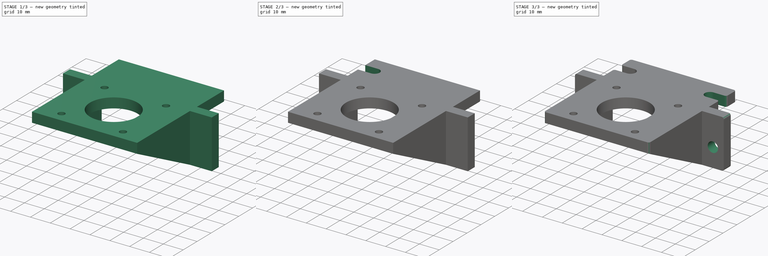
[diagram: build sequence overview — one tinted view per stage of 3, left to right]
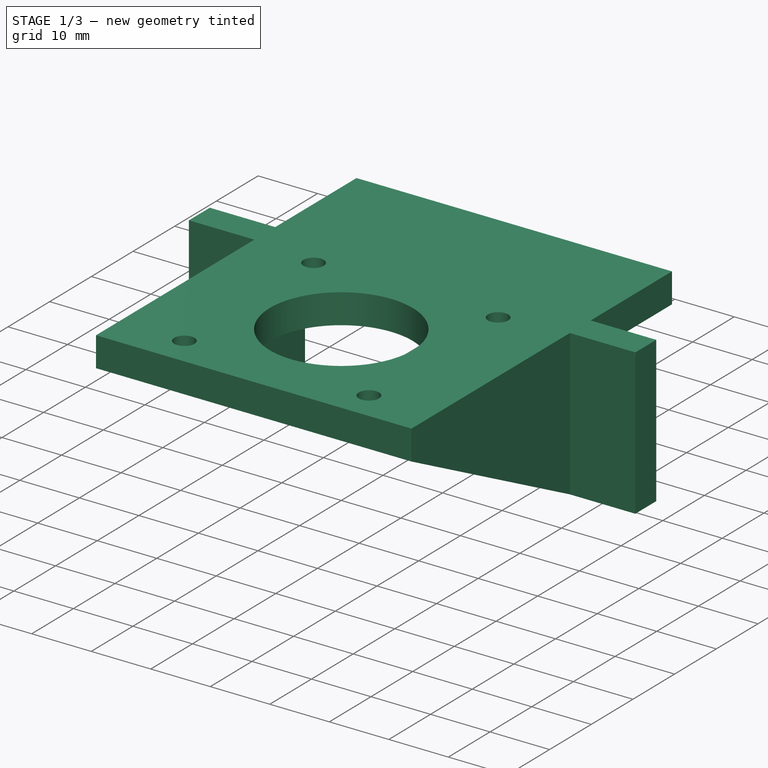
[diagram: stage 1 of 3 — iso view after this stage's code; geometry added in this stage tinted green]
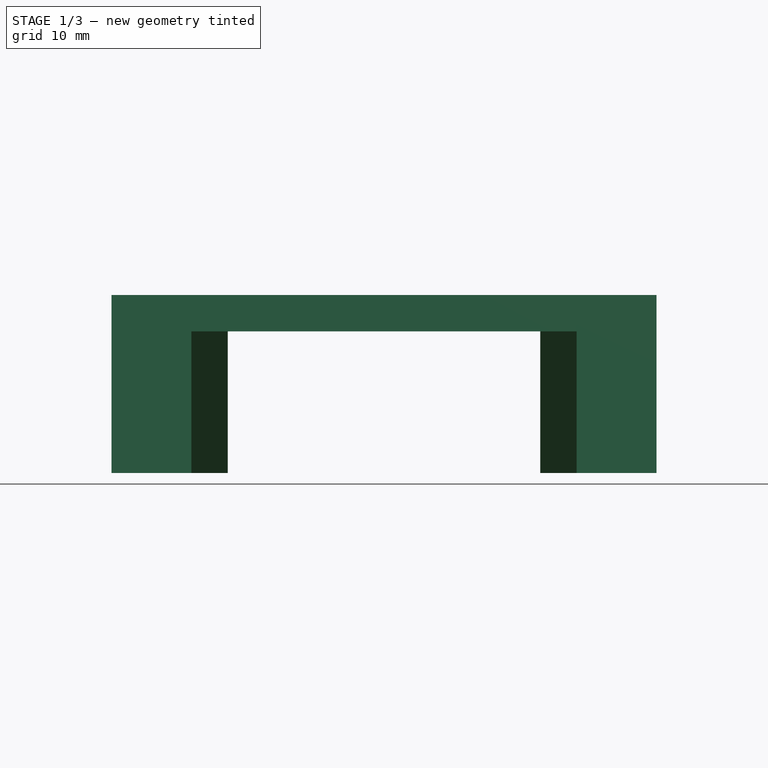
[diagram: stage 1 of 3 — front view after this stage's code; geometry added in this stage tinted green]
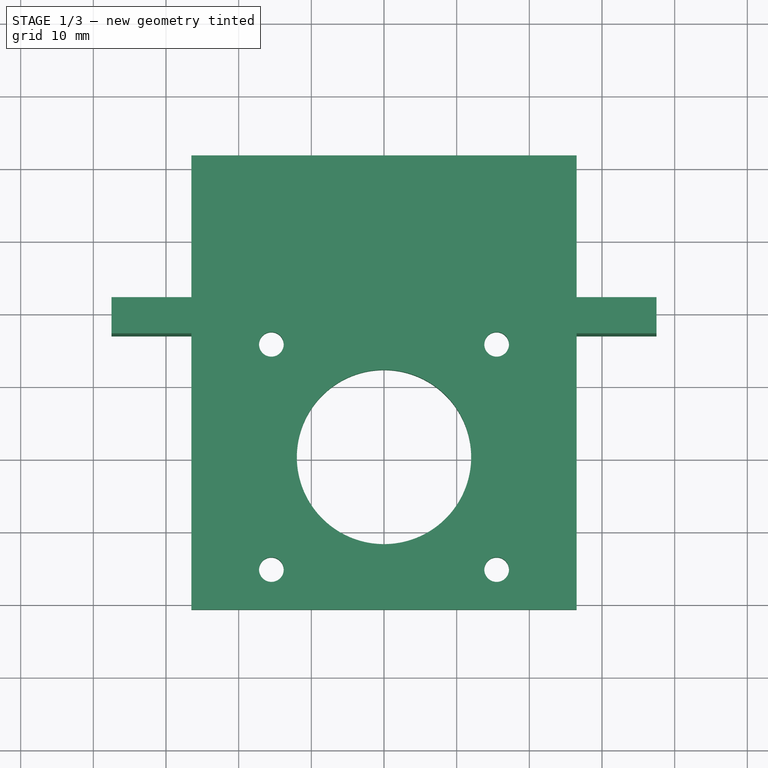
[diagram: stage 1 of 3 — top view after this stage's code; geometry added in this stage tinted green]
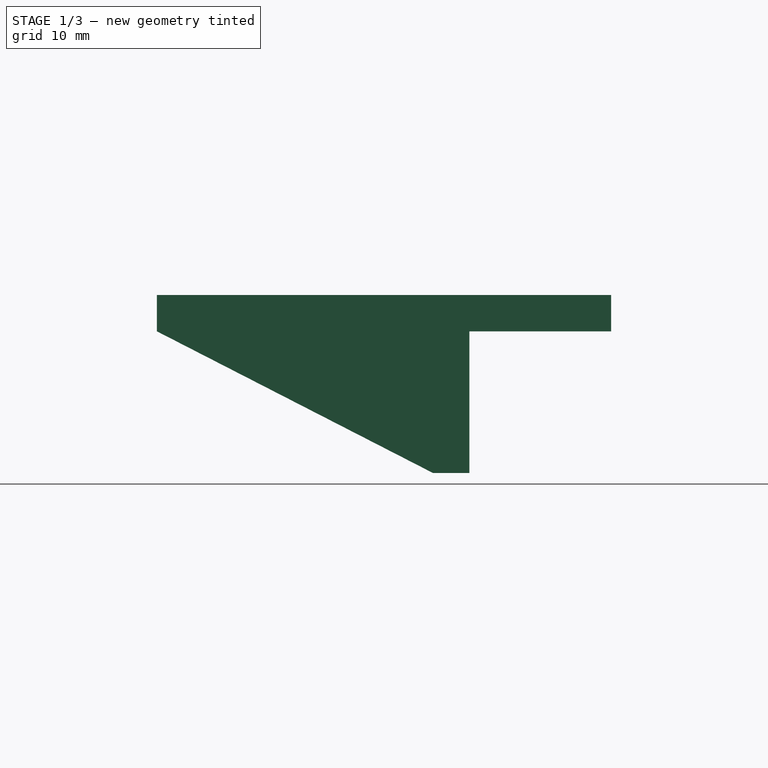
[diagram: stage 1 of 3 — right view after this stage's code; geometry added in this stage tinted green]
FCSTD DOCUMENT  (FreeCAD 0.17R13519 (Git))
Label: Corelia_0_Z_motor_mount
License: All rights reserved
LicenseURL: http://en.wikipedia.org/wiki/All_rights_reserved
objects: Sketcher::SketchObject×5, PartDesign::Pocket×4, PartDesign::Mirrored×2, PartDesign::Pad×1, PartDesign::Fillet×1, PartDesign::Body×1
note: 19 computed .brp shape members not serialized (recipe doc carries the construction recipe); baked Part::Feature solids carry a one-line shape summary decoded from their .brp

FEATURE [Sketcher::SketchObject] Sketch
  MapMode = 5
  Support = -> [XY_Plane]
  sketch-geometry (21):
    g0: LineSegment [constr] StartX=-15.5 StartY=15.5 StartZ=0 EndX=15.5 EndY=15.5 EndZ=0
    g1: LineSegment [constr] StartX=15.5 StartY=15.5 StartZ=0 EndX=15.5 EndY=-15.5 EndZ=0
    g2: LineSegment [constr] StartX=15.5 StartY=-15.5 StartZ=0 EndX=-15.5 EndY=-15.5 EndZ=0
    g3: LineSegment [constr] StartX=-15.5 StartY=-15.5 StartZ=0 EndX=-15.5 EndY=15.5 EndZ=0
    g4: Circle CenterX=0 CenterY=0 CenterZ=0 NormalX=0 NormalY=0 NormalZ=1 AngleXU=0 Radius=12
    g5: LineSegment StartX=-26.5 StartY=-21 StartZ=0 EndX=26.5 EndY=-21 EndZ=0
    g6: LineSegment StartX=26.5 StartY=-21 StartZ=0 EndX=26.5 EndY=17 EndZ=0
    g7: LineSegment StartX=26.5 StartY=17 StartZ=0 EndX=37.5 EndY=17 EndZ=0
    g8: LineSegment StartX=37.5 StartY=17 StartZ=0 EndX=37.5 EndY=22 EndZ=0
    g9: LineSegment StartX=37.5 StartY=22 StartZ=0 EndX=26.5 EndY=22 EndZ=0
    g10: LineSegment StartX=26.5 StartY=22 StartZ=0 EndX=26.5 EndY=41.5 EndZ=0
    g11: LineSegment StartX=26.5 StartY=41.5 StartZ=0 EndX=-26.5 EndY=41.5 EndZ=0
    g12: LineSegment StartX=-26.5 StartY=41.5 StartZ=0 EndX=-26.5 EndY=22 EndZ=0
    g13: LineSegment StartX=-26.5 StartY=22 StartZ=0 EndX=-37.5 EndY=22 EndZ=0
    g14: LineSegment StartX=-37.5 StartY=22 StartZ=0 EndX=-37.5 EndY=17 EndZ=0
    g15: LineSegment StartX=-37.5 StartY=17 StartZ=0 EndX=-26.5 EndY=17 EndZ=0
    g16: LineSegment StartX=-26.5 StartY=17 StartZ=0 EndX=-26.5 EndY=-21 EndZ=0
    g17: Circle CenterX=-15.5 CenterY=15.5 CenterZ=0 NormalX=0 NormalY=0 NormalZ=1 AngleXU=0 Radius=1.7
    g18: Circle CenterX=15.5 CenterY=15.5 CenterZ=0 NormalX=0 NormalY=0 NormalZ=1 AngleXU=0 Radius=1.7
    g19: Circle CenterX=-15.5 CenterY=-15.5 CenterZ=0 NormalX=0 NormalY=0 NormalZ=1 AngleXU=0 Radius=1.7
    g20: Circle CenterX=15.5 CenterY=-15.5 CenterZ=0 NormalX=0 NormalY=0 NormalZ=1 AngleXU=0 Radius=1.7
  constraints (59):
    c: Coincident(g0,g1)
    c: Coincident(g1,g2)
    c: Coincident(g2,g3)
    c: Coincident(g3,g0)
    c: Horizontal(g0)
    c: Horizontal(g2)
    c: Vertical(g1)
    c: Vertical(g3)
    c: Coincident(g4,g-1)
    c: Radius(g4) = 12
    c: DistanceX(g0,g0) = 31
    c: Equal(g0,g3)
    c: DistanceX(g0) = 15.5
    c: DistanceY(g0) = 15.5
    c: Horizontal(g5)
    c: Coincident(g5,g6)
    c: Vertical(g6)
    c: Coincident(g6,g7)
    c: Horizontal(g7)
    c: Coincident(g7,g8)
    c: Vertical(g8)
    c: Coincident(g8,g9)
    c: Horizontal(g9)
    c: Coincident(g9,g10)
    c: Vertical(g10)
    c: Coincident(g10,g11)
    c: Horizontal(g11)
    c: Coincident(g11,g12)
    c: Vertical(g12)
    c: Coincident(g12,g13)
    c: Horizontal(g13)
    c: Coincident(g13,g14)
    c: Vertical(g14)
    c: Coincident(g14,g15)
    c: Horizontal(g15)
    c: Coincident(g15,g16)
    c: Coincident(g16,g5)
    c: Vertical(g16)
    c: Equal(g13,g15)
    c: Equal(g15,g9)
    c: Equal(g9,g7)
    c: Equal(g14,g8)
    c: Equal(g12,g10)
    c: Equal(g11,g5)
    c: DistanceX(g5,g5) = 53
    c: DistanceY(g14,g14) = 5
    c: DistanceX(g13,g13) = 11
    c: DistanceY(g12,g12) = 19.5
    c: DistanceX(g5) = 26.5
    c: Coincident(g17,g0)
    c: Coincident(g18,g0)
    c: Coincident(g19,g2)
    c: Coincident(g20,g1)
    c: Equal(g17,g19)
    c: Equal(g19,g18)
    c: Equal(g18,g20)
    c: Radius(g20) = 1.7
    c: DistanceY(g7) = 17
    c: DistanceY(g16,g16) = 38
FEATURE [PartDesign::Pad] Pad
  Length = 24.5
  Length2 = 100
  Profile = -> Sketch
  Type = 0
FEATURE [Sketcher::SketchObject] Sketch001
  MapMode = 5
  Placement = pos=(0,0,0) rot=(1,0,0;3.14159rad)
  Support = -> [Pad]
  sketch-geometry (8):
    g0: LineSegment StartX=-26.5 StartY=-41.5 StartZ=0 EndX=26.5 EndY=-41.5 EndZ=0
    g1: LineSegment StartX=26.5 StartY=-41.5 StartZ=0 EndX=26.5 EndY=-22 EndZ=0
    g2: LineSegment StartX=-26.5 StartY=-22 StartZ=0 EndX=-26.5 EndY=-41.5 EndZ=0
    g3: LineSegment StartX=-26.5 StartY=-22 StartZ=0 EndX=-21.5 EndY=-22 EndZ=0
    g4: LineSegment StartX=-21.5 StartY=-22 StartZ=0 EndX=-21.5 EndY=21 EndZ=0
    g5: LineSegment StartX=-21.5 StartY=21 StartZ=0 EndX=21.5 EndY=21 EndZ=0
    g6: LineSegment StartX=21.5 StartY=21 StartZ=0 EndX=21.5 EndY=-22 EndZ=0
    g7: LineSegment StartX=21.5 StartY=-22 StartZ=0 EndX=26.5 EndY=-22 EndZ=0
  constraints (25):
    c: Coincident(g0,g1)
    c: Coincident(g2,g0)
    c: Horizontal(g0)
    c: Vertical(g1)
    c: Vertical(g2)
    c: DistanceX(g0,g0) = 53
    c: DistanceX(g1) = 26.5
    c: DistanceY(g1) = -22
    c: DistanceY(g1,g1) = 19.5
    c: Coincident(g2,g3)
    c: Horizontal(g3)
    c: Coincident(g3,g4)
    c: Vertical(g4)
    c: Coincident(g4,g5)
    c: Horizontal(g5)
    c: Coincident(g5,g6)
    c: Vertical(g6)
    c: Coincident(g6,g7)
    c: Coincident(g7,g1)
    c: Horizontal(g7)
    c: Equal(g2,g1)
    c: Equal(g3,g7)
    c: Equal(g4,g6)
    c: DistanceX(g3,g3) = 5
    c: DistanceY(g4,g4) = 43
FEATURE [PartDesign::Pocket] Pocket
  BaseFeature = -> Pad
  Length = 19.5
  Length2 = 100
  Profile = -> Sketch001
  Type = 0
FEATURE [Sketcher::SketchObject] Sketch002
  MapMode = 5
  Placement = pos=(26.5,0,0) rot=(0.57735,0.57735,0.57735;2.0944rad)
  Support = -> [Pocket]
  sketch-geometry (3):
    g0: LineSegment StartX=17 StartY=0 StartZ=0 EndX=-21 EndY=0 EndZ=0
    g1: LineSegment StartX=-21 StartY=0 StartZ=0 EndX=-21 EndY=19.5 EndZ=0
    g2: LineSegment StartX=-21 StartY=19.5 StartZ=0 EndX=17 EndY=0 EndZ=0
  constraints (9):
    c: Horizontal(g0)
    c: Coincident(g0,g1)
    c: Vertical(g1)
    c: Coincident(g1,g2)
    c: Coincident(g2,g0)
    c: PointOnObject(g-1,g0)
    c: DistanceX(g1) = -21
    c: DistanceY(g1) = 19.5
    c: DistanceX(g0) = 17
FEATURE [PartDesign::Pocket] Pocket001
  BaseFeature = -> Pocket
  Length = 5
  Length2 = 100
  Profile = -> Sketch002
  Type = 1
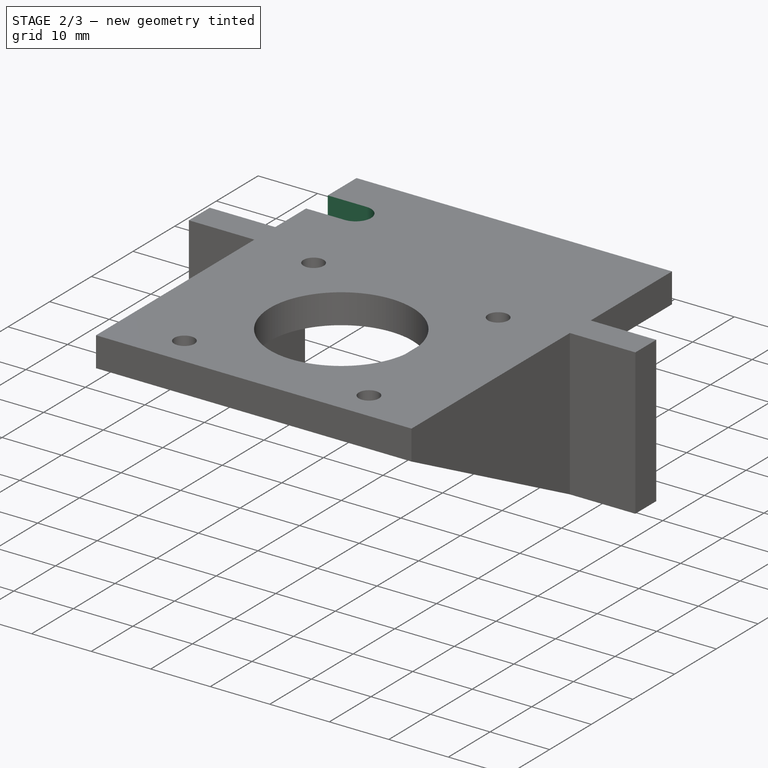
[diagram: stage 2 of 3 — iso view after this stage's code; geometry added in this stage tinted green]
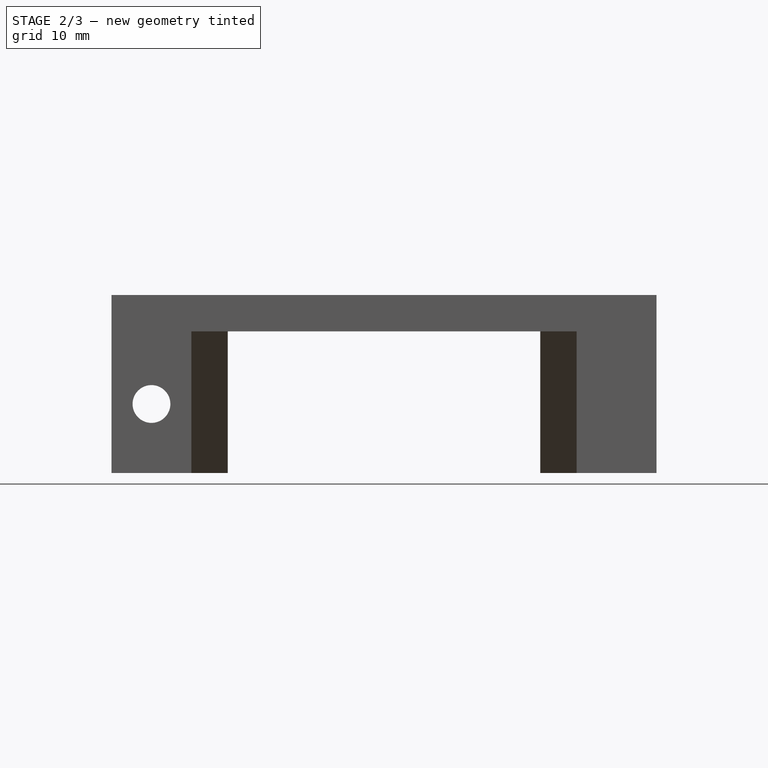
[diagram: stage 2 of 3 — front view after this stage's code; geometry added in this stage tinted green]
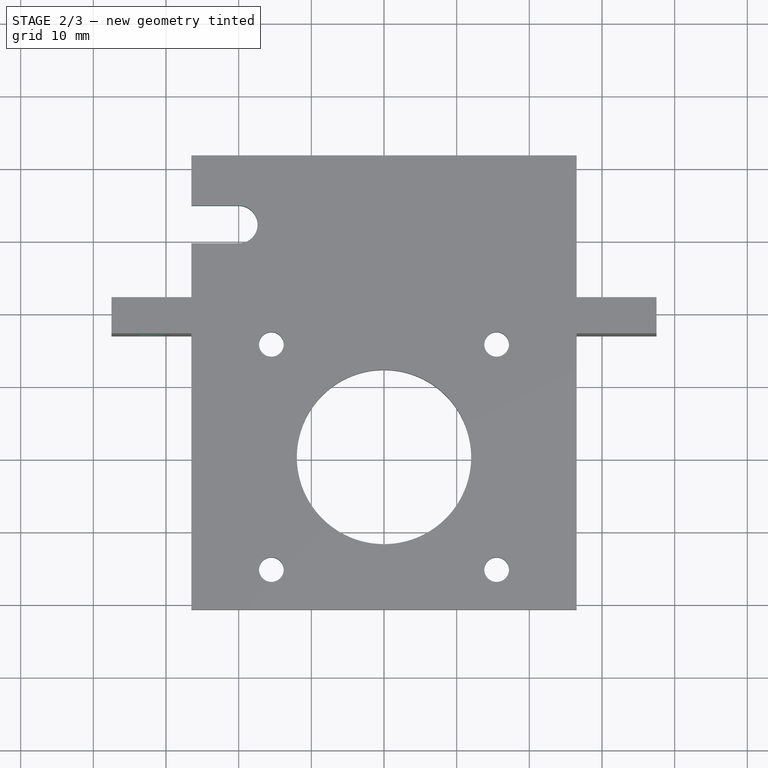
[diagram: stage 2 of 3 — top view after this stage's code; geometry added in this stage tinted green]
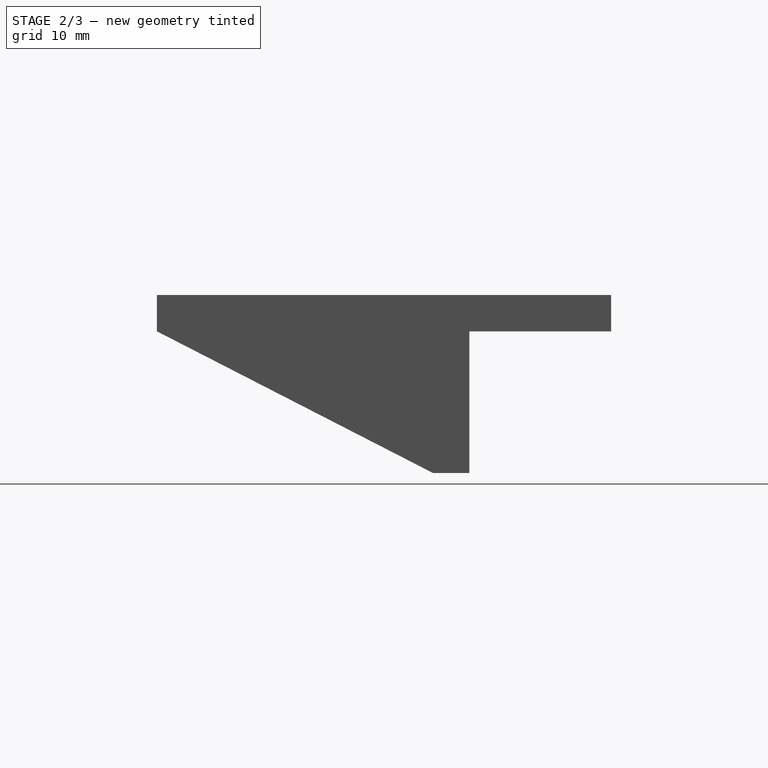
[diagram: stage 2 of 3 — right view after this stage's code; geometry added in this stage tinted green]
FEATURE [Sketcher::SketchObject] Sketch003
  MapMode = 5
  Placement = pos=(0,0,24.5) rot=(0,0,1;0rad)
  Support = -> [Pocket001]
  sketch-geometry (5):
    g0: LineSegment StartX=-26.5 StartY=34.6 StartZ=0 EndX=-20 EndY=34.6 EndZ=0
    g1: LineSegment [constr] StartX=-20 StartY=34.6 StartZ=0 EndX=-20 EndY=29.4 EndZ=0
    g2: LineSegment StartX=-20 StartY=29.4 StartZ=0 EndX=-26.5 EndY=29.4 EndZ=0
    g3: LineSegment StartX=-26.5 StartY=29.4 StartZ=0 EndX=-26.5 EndY=34.6 EndZ=0
    g4: ArcOfCircle CenterX=-20 CenterY=32 CenterZ=0 NormalX=0 NormalY=0 NormalZ=1 AngleXU=0 Radius=2.6 StartAngle=4.71239 EndAngle=7.85398
  constraints (15):
    c: Coincident(g0,g1)
    c: Coincident(g1,g2)
    c: Coincident(g2,g3)
    c: Coincident(g3,g0)
    c: Horizontal(g0)
    c: Horizontal(g2)
    c: Vertical(g1)
    c: Vertical(g3)
    c: PointOnObject(g4,g1)
    c: Coincident(g4,g0)
    c: Coincident(g1,g4)
    c: DistanceX(g0,g0) = 6.5
    c: DistanceY(g3,g3) = 5.2
    c: DistanceX(g2) = -26.5
    c: DistanceY(g2) = 29.4
FEATURE [PartDesign::Pocket] Pocket002
  BaseFeature = -> Pocket001
  Length = 5
  Length2 = 100
  Profile = -> Sketch003
  Type = 1
FEATURE [Sketcher::SketchObject] Sketch004
  MapMode = 5
  Placement = pos=(0,17,0) rot=(1,0,0;1.5708rad)
  Support = -> [Pocket002]
  sketch-geometry (1):
    g0: Circle CenterX=-32 CenterY=9.5 CenterZ=0 NormalX=0 NormalY=0 NormalZ=1 AngleXU=0 Radius=2.6
  constraints (3):
    c: Radius(g0) = 2.6
    c: DistanceX(g0) = -32
    c: DistanceY(g0) = 9.5
FEATURE [PartDesign::Pocket] Pocket003
  BaseFeature = -> Pocket002
  Length = 5
  Length2 = 100
  Profile = -> Sketch004
  Type = 1
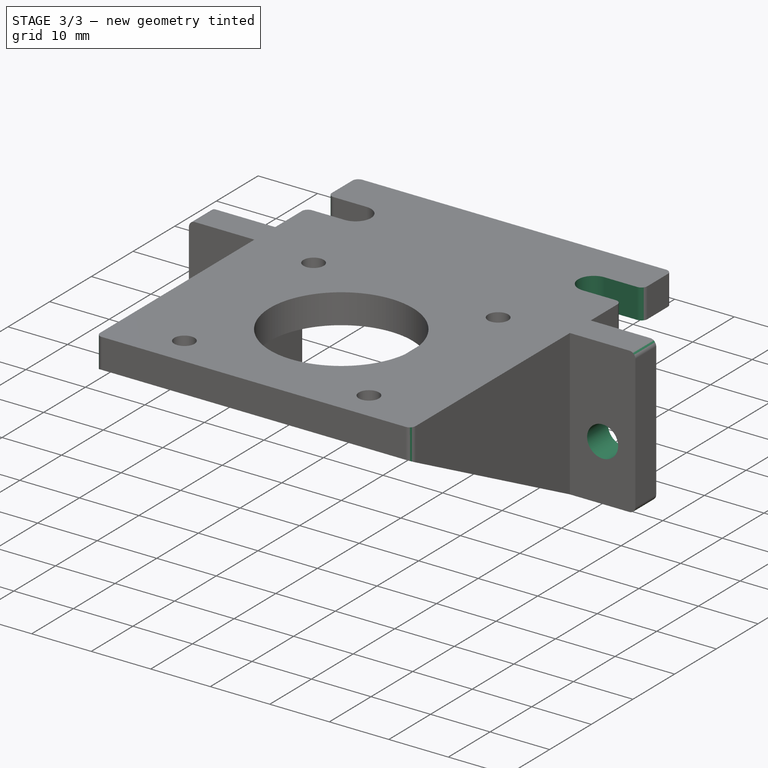
[diagram: stage 3 of 3 — iso view after this stage's code; geometry added in this stage tinted green]
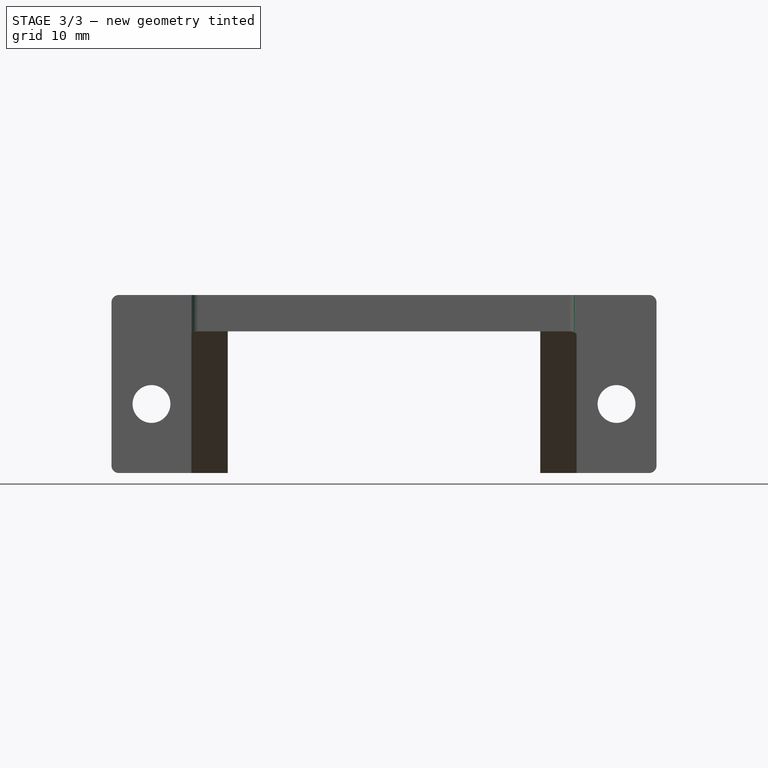
[diagram: stage 3 of 3 — front view after this stage's code; geometry added in this stage tinted green]
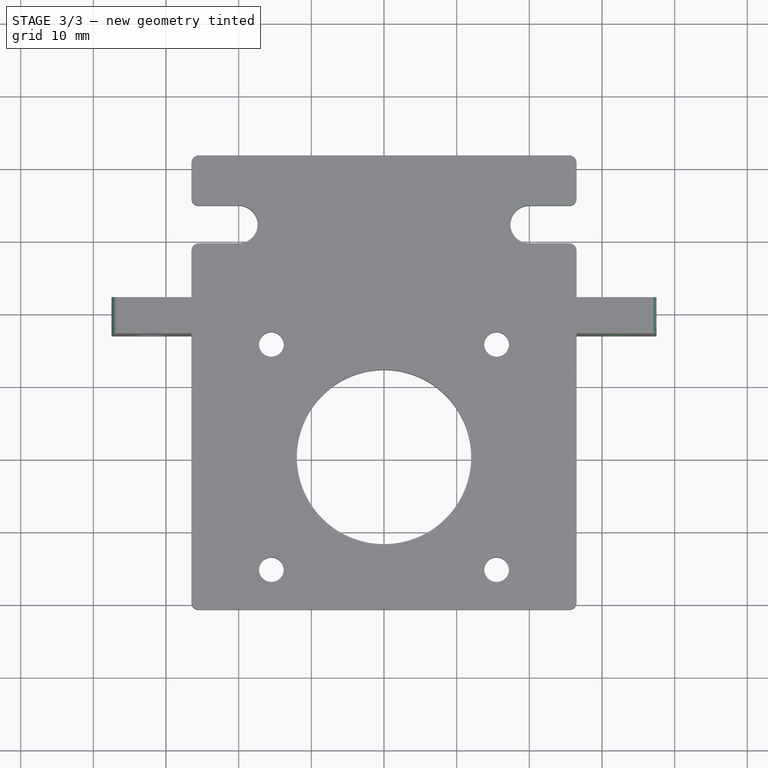
[diagram: stage 3 of 3 — top view after this stage's code; geometry added in this stage tinted green]
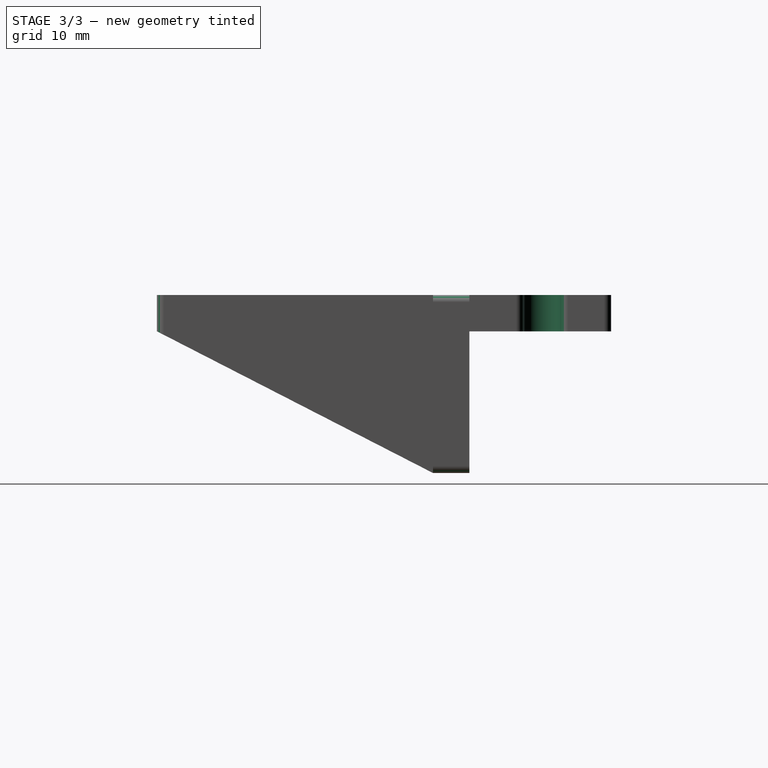
[diagram: stage 3 of 3 — right view after this stage's code; geometry added in this stage tinted green]
FEATURE [PartDesign::Mirrored] Mirrored
  BaseFeature = -> Pocket003
  MirrorPlane = -> Sketch004 [V_Axis]
  Originals = -> [Pocket003]
FEATURE [PartDesign::Mirrored] Mirrored001
  BaseFeature = -> Mirrored
  MirrorPlane = -> Sketch003 [V_Axis]
  Originals = -> [Pocket002]
FEATURE [PartDesign::Fillet] Fillet
  Base = -> Mirrored001 [Edge81,Edge66,Edge68,Edge79,Edge80,Edge75,Edge6,Edge4,Edge60,Edge72,Edge36,Edge50,Edge62,Edge88]
  BaseFeature = -> Mirrored001
  Radius = 1
FEATURE [PartDesign::Body] Body
  Group = -> [Sketch,Pad,Sketch001,Pocket,Sketch002,Pocket001,Sketch003,Pocket002,Sketch004,Pocket003,Mirrored,Mirrored001,Fillet]
  Origin = -> Origin
  Tip = -> Fillet
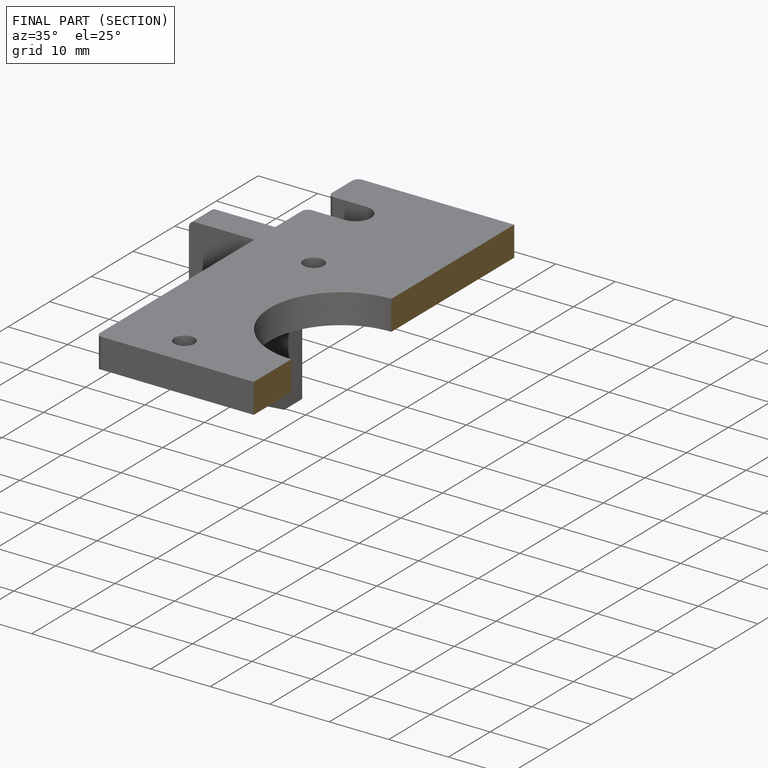
[diagram: finished part — half-section view (interior)]
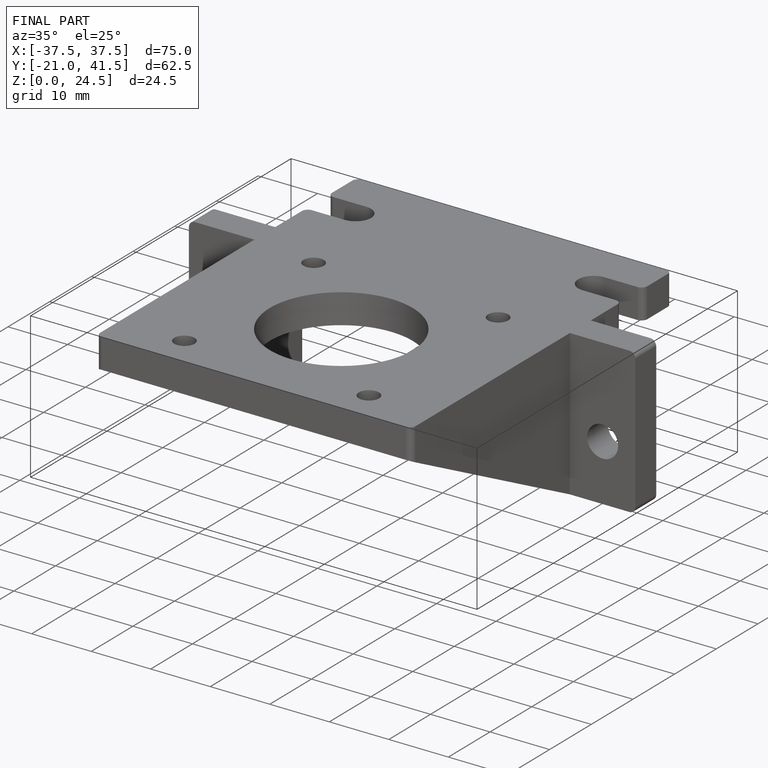
[diagram: finished part — iso view with bounding-box wireframe]
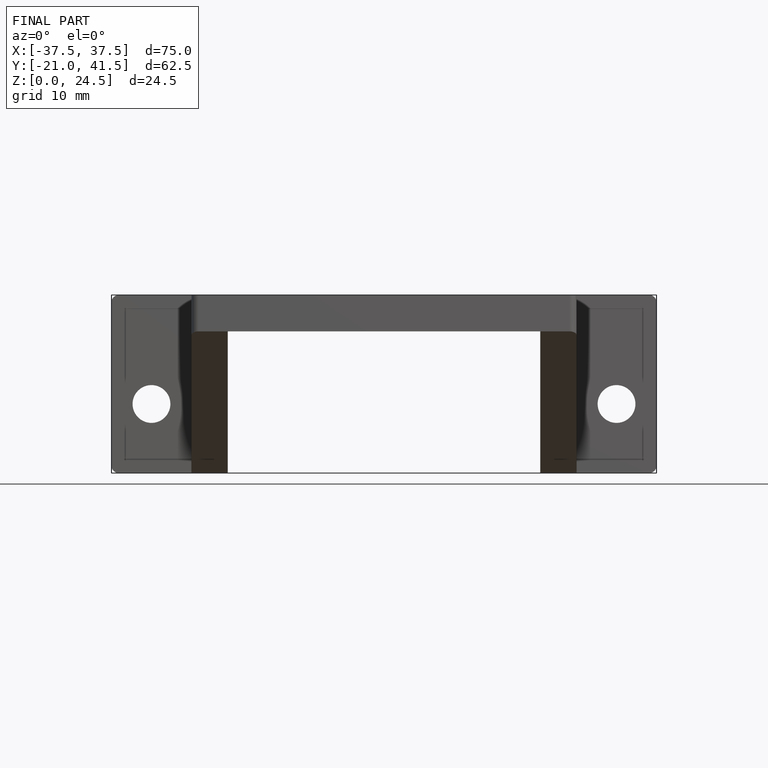
[diagram: finished part — front view with bounding-box wireframe]
